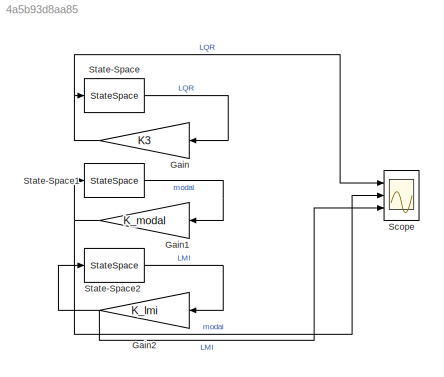
MODEL slx_4a5b93d8aa85
KIND model
CONFIG AbsTol = auto
CONFIG EnableMultiTasking = off
CONFIG FixedStep = 0.001
CONFIG MaxStep = auto
CONFIG MinStep = auto
CONFIG RelTol = 1e-3
CONFIG SampleTimeConstraint = Unconstrained
CONFIG SolverName = FixedStepAuto
CONFIG StartTime = 0.0
CONFIG StopTime = 10
BLOCK [Gain] Gain
  Gain = K3
  Multiplication = Matrix(K*u) (u vector)
  NameLocation = top
BLOCK [Gain] Gain1
  Gain = K_modal
  Multiplication = Matrix(K*u) (u vector)
  NameLocation = top
BLOCK [Gain] Gain2
  Gain = K_lmi
  Multiplication = Matrix(K*u) (u vector)
  NameLocation = top
BLOCK [Scope] Scope
  Floating = off
  NumInputPorts = 3
  Ports = [3]
  ScopeSpecificationString = Simulink.scopes.TimeScopeBlockCfg('CurrentConfiguration', extmgr.ConfigurationSet(extmgr.Configuration('Core','General UI',true),extmgr.Configuration('Core','Source UI',true),extmgr.Configuration('Sources','WiredSimulink',true),extmgr.Configuration('Visuals','Time Domain',true,'SerializedDisplays',{struct('MinYLimReal','-500','MaxYLimReal','500','YLabelReal','u','MinYLimMag','0.00000','MaxYLimMag'...<+1755ch>
BLOCK [StateSpace] State-Space
  A = A
  B = B
  C = [1 0 0 0; 0 1 0 0; 0 0 1 0; 0 0 0 1]
  D = [ 0 0; 0 0; 0 0;0 0]
  InitialCondition = x0
  Ports = [1, 1]
BLOCK [StateSpace] State-Space1
  A = A
  B = B
  C = [1 0 0 0; 0 1 0 0; 0 0 1 0; 0 0 0 1]
  D = [ 0 0; 0 0; 0 0;0 0]
  InitialCondition = x0
  Ports = [1, 1]
BLOCK [StateSpace] State-Space2
  A = A
  B = B
  C = [1 0 0 0; 0 1 0 0; 0 0 1 0; 0 0 0 1]
  D = [ 0 0; 0 0; 0 0;0 0]
  InitialCondition = x0
  Ports = [1, 1]
NET Gain1:1 -> Scope:2, State-Space1:1
NET Gain2:1 -> Scope:3, State-Space2:1
NET Gain:1 -> Scope:1, State-Space:1
LINE State-Space1:1 -> Gain1:1
LINE State-Space2:1 -> Gain2:1
LINE State-Space:1 -> Gain:1
note: NET lines group one-source signal fan-out (src -> all destinations, sorted); 1:1 wires keep LINE
